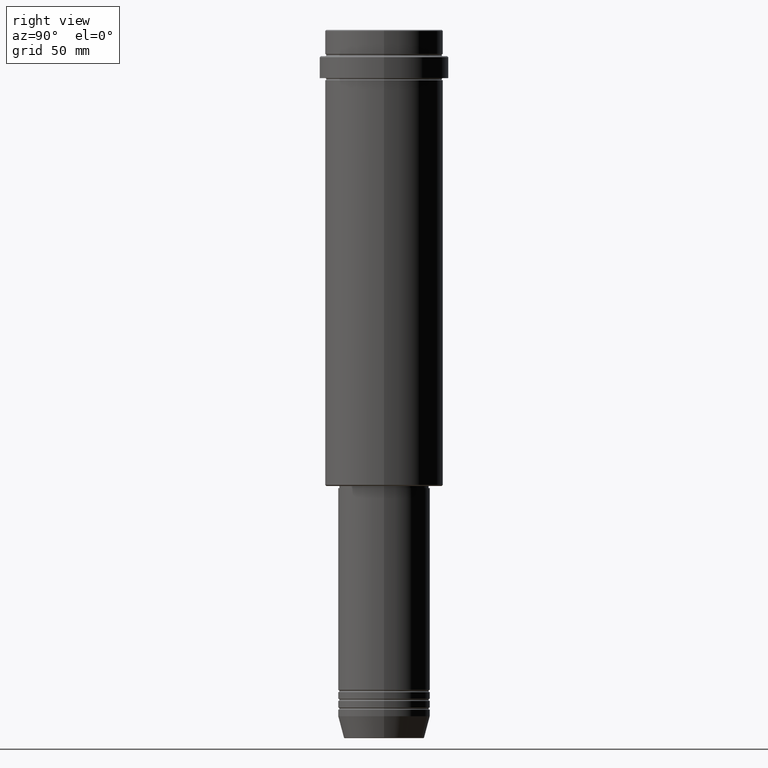
[diagram: clean part render]
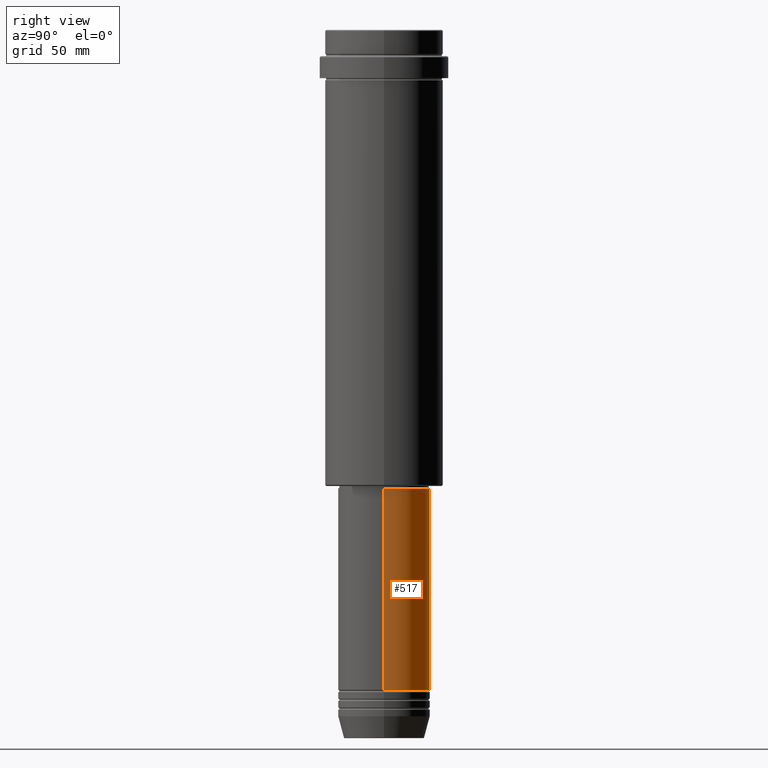
[diagram: same view with one face highlighted and labeled with its STEP entity id]
A machine part, right view. The second image highlights one B-rep face of the part: STEP entity #517.
In plain terms, the highlighted cylindrical surface (partial cylindrical patch) has radius 21 mm, axis along (-0, -0, 1).
Its self-contained STEP definition (entity closure, byte-faithful):
#24 = CIRCLE ( 'NONE', #735, 21.00000000000000000 ) ;
#59 = CYLINDRICAL_SURFACE ( 'NONE', #211, 21.00000000000000000 ) ;
#107 = DIRECTION ( 'NONE',  ( -0.000000000000000000, -0.000000000000000000, 1.000000000000000000 ) ) ;
#140 = EDGE_CURVE ( 'NONE', #1099, #355, #24, .T. ) ;
#211 = AXIS2_PLACEMENT_3D ( 'NONE', #509, #618, #1059 ) ;
#240 = VECTOR ( 'NONE', #466, 1000.000000000000000 ) ;
#246 = LINE ( 'NONE', #575, #240 ) ;
#256 = DIRECTION ( 'NONE',  ( -0.000000000000000000, -0.000000000000000000, 1.000000000000000000 ) ) ;
#307 = AXIS2_PLACEMENT_3D ( 'NONE', #1339, #1004, #797 ) ;
#345 = EDGE_LOOP ( 'NONE', ( #1131, #885, #1086, #716 ) ) ;
#355 = VERTEX_POINT ( 'NONE', #659 ) ;
#434 = VERTEX_POINT ( 'NONE', #1117 ) ;
#466 = DIRECTION ( 'NONE',  ( -0.000000000000000000, -0.000000000000000000, 1.000000000000000000 ) ) ;
#509 = CARTESIAN_POINT ( 'NONE',  ( 0.000000000000000000, 0.000000000000000000, 0.000000000000000000 ) ) ;
#517 = ADVANCED_FACE ( 'NONE', ( #1047 ), #59, .T. ) ;
#575 = CARTESIAN_POINT ( 'NONE',  ( 21.00000000000000000, 0.000000000000000000, 0.000000000000000000 ) ) ;
#603 = EDGE_CURVE ( 'NONE', #355, #434, #743, .T. ) ;
#618 = DIRECTION ( 'NONE',  ( -0.000000000000000000, -0.000000000000000000, 1.000000000000000000 ) ) ;
#643 = CARTESIAN_POINT ( 'NONE',  ( -21.00000000000000000, 2.571758278209441661E-15, 0.000000000000000000 ) ) ;
#659 = CARTESIAN_POINT ( 'NONE',  ( -21.00000000000000000, 2.571758278209441661E-15, -300.9999999999998863 ) ) ;
#702 = EDGE_CURVE ( 'NONE', #1383, #434, #1109, .T. ) ;
#716 = ORIENTED_EDGE ( 'NONE', *, *, #878, .F. ) ;
#735 = AXIS2_PLACEMENT_3D ( 'NONE', #928, #256, #1373 ) ;
#743 = LINE ( 'NONE', #643, #750 ) ;
#750 = VECTOR ( 'NONE', #107, 1000.000000000000000 ) ;
#797 = DIRECTION ( 'NONE',  ( 1.000000000000000000, 0.000000000000000000, 0.000000000000000000 ) ) ;
#878 = EDGE_CURVE ( 'NONE', #1099, #1383, #246, .T. ) ;
#885 = ORIENTED_EDGE ( 'NONE', *, *, #603, .T. ) ;
#928 = CARTESIAN_POINT ( 'NONE',  ( 0.000000000000000000, 0.000000000000000000, -300.9999999999998863 ) ) ;
#952 = CARTESIAN_POINT ( 'NONE',  ( 21.00000000000000000, 0.000000000000000000, -208.9999999999999432 ) ) ;
#1004 = DIRECTION ( 'NONE',  ( -0.000000000000000000, -0.000000000000000000, 1.000000000000000000 ) ) ;
#1047 = FACE_OUTER_BOUND ( 'NONE', #345, .T. ) ;
#1059 = DIRECTION ( 'NONE',  ( 1.000000000000000000, 0.000000000000000000, 0.000000000000000000 ) ) ;
#1086 = ORIENTED_EDGE ( 'NONE', *, *, #702, .F. ) ;
#1099 = VERTEX_POINT ( 'NONE', #1262 ) ;
#1109 = CIRCLE ( 'NONE', #307, 21.00000000000000000 ) ;
#1117 = CARTESIAN_POINT ( 'NONE',  ( -21.00000000000000000, 2.571758278209441661E-15, -208.9999999999999432 ) ) ;
#1131 = ORIENTED_EDGE ( 'NONE', *, *, #140, .T. ) ;
#1262 = CARTESIAN_POINT ( 'NONE',  ( 21.00000000000000000, 0.000000000000000000, -300.9999999999998863 ) ) ;
#1339 = CARTESIAN_POINT ( 'NONE',  ( 0.000000000000000000, 0.000000000000000000, -208.9999999999999432 ) ) ;
#1373 = DIRECTION ( 'NONE',  ( 1.000000000000000000, 0.000000000000000000, 0.000000000000000000 ) ) ;
#1383 = VERTEX_POINT ( 'NONE', #952 ) ;